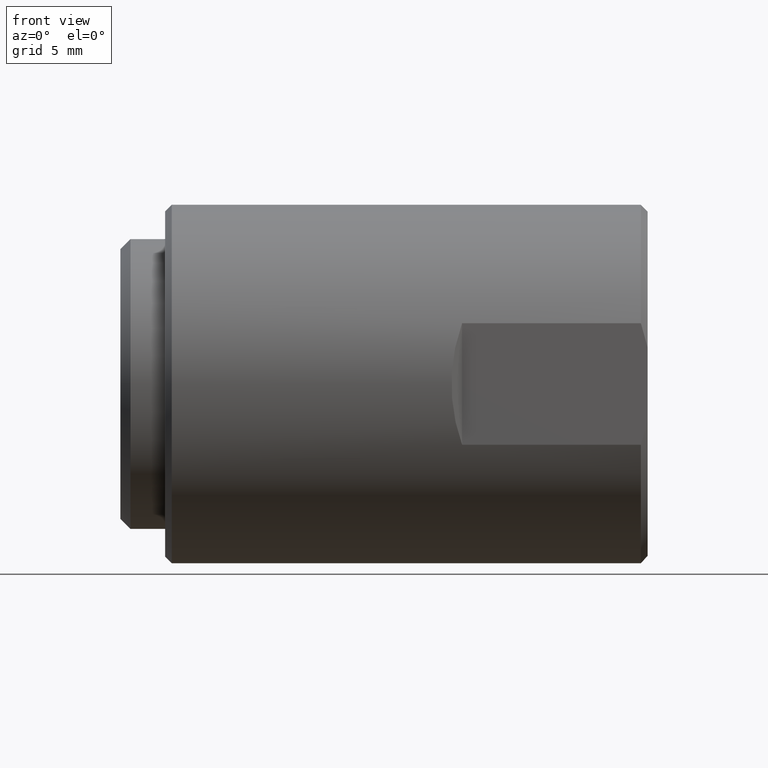
[diagram: clean part render]
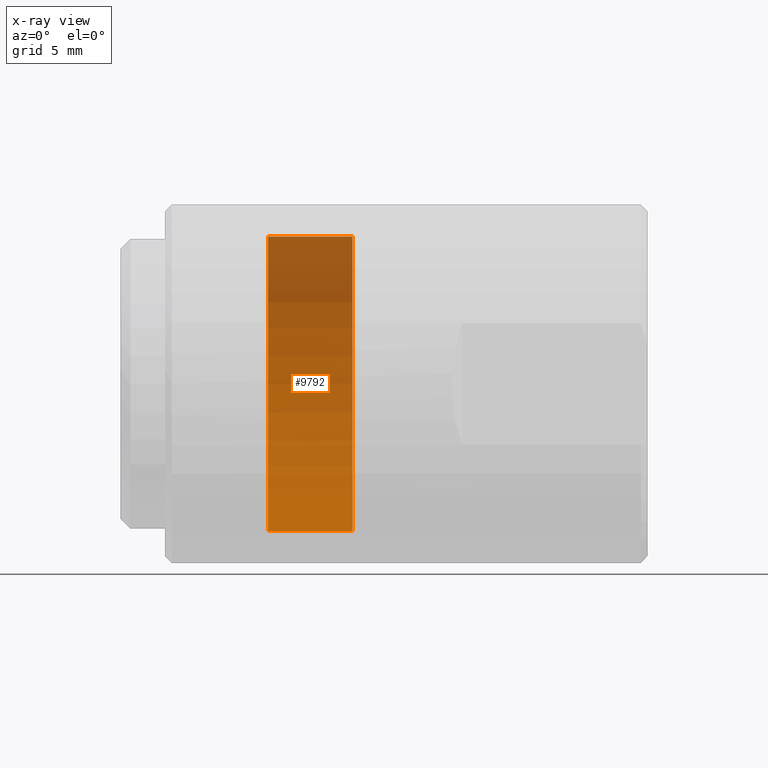
[diagram: x-ray — body ghosted, one internal face saturated and labeled with its STEP entity id]
A machine part, front view, then the same camera in x-ray: the body is ghosted and one INTERNAL B-rep face — a face not visible from any outside direction — is saturated and labeled: STEP entity #9792.
In plain terms, the highlighted cylindrical surface (partial cylindrical patch) has radius 11.0998 mm, axis along (-1, -0, -0).
Its self-contained STEP definition (entity closure, byte-faithful):
#40 = EDGE_CURVE ( 'NONE', #8440, #7607, #2316, .T. ) ;
#467 = CARTESIAN_POINT ( 'NONE',  ( 0.0000000000000000000, 5.351706512273933375E-17, -0.4369999999999999996 ) ) ;
#501 = CARTESIAN_POINT ( 'NONE',  ( 0.0000000000000000000, 0.0000000000000000000, 0.4369999999999999996 ) ) ;
#563 = DIRECTION ( 'NONE',  ( -1.000000000000000000, -0.0000000000000000000, -0.0000000000000000000 ) ) ;
#1259 = ORIENTED_EDGE ( 'NONE', *, *, #4608, .F. ) ;
#1531 = DIRECTION ( 'NONE',  ( 0.0000000000000000000, 0.0000000000000000000, 1.000000000000000000 ) ) ;
#1587 = DIRECTION ( 'NONE',  ( -1.000000000000000000, -0.0000000000000000000, -0.0000000000000000000 ) ) ;
#1851 = CIRCLE ( 'NONE', #3713, 0.4369999999999999996 ) ;
#2316 = CIRCLE ( 'NONE', #6579, 0.4369999999999999996 ) ;
#2349 = CARTESIAN_POINT ( 'NONE',  ( 0.0000000000000000000, 0.0000000000000000000, 0.0000000000000000000 ) ) ;
#3713 = AXIS2_PLACEMENT_3D ( 'NONE', #5087, #563, #4155 ) ;
#4054 = VECTOR ( 'NONE', #9257, 39.37007874015748143 ) ;
#4155 = DIRECTION ( 'NONE',  ( 0.0000000000000000000, 0.0000000000000000000, 1.000000000000000000 ) ) ;
#4364 = ORIENTED_EDGE ( 'NONE', *, *, #7556, .T. ) ;
#4473 = DIRECTION ( 'NONE',  ( 0.0000000000000000000, 0.0000000000000000000, 1.000000000000000000 ) ) ;
#4506 = CARTESIAN_POINT ( 'NONE',  ( 0.09400000000000001410, 5.351706512273933375E-17, -0.4369999999999999996 ) ) ;
#4608 = EDGE_CURVE ( 'NONE', #7607, #7519, #11065, .T. ) ;
#4907 = LINE ( 'NONE', #501, #4054 ) ;
#5087 = CARTESIAN_POINT ( 'NONE',  ( 0.09400000000000001410, 0.0000000000000000000, 0.0000000000000000000 ) ) ;
#5128 = CYLINDRICAL_SURFACE ( 'NONE', #6316, 0.4369999999999999996 ) ;
#5478 = CARTESIAN_POINT ( 'NONE',  ( 0.3440000000000000280, 0.0000000000000000000, 0.4369999999999999996 ) ) ;
#6314 = VERTEX_POINT ( 'NONE', #10587 ) ;
#6316 = AXIS2_PLACEMENT_3D ( 'NONE', #2349, #1587, #1531 ) ;
#6579 = AXIS2_PLACEMENT_3D ( 'NONE', #7024, #8777, #4473 ) ;
#6775 = ORIENTED_EDGE ( 'NONE', *, *, #40, .F. ) ;
#6790 = EDGE_LOOP ( 'NONE', ( #1259, #6775, #4364, #8857 ) ) ;
#7024 = CARTESIAN_POINT ( 'NONE',  ( 0.3440000000000000280, 0.0000000000000000000, 0.0000000000000000000 ) ) ;
#7519 = VERTEX_POINT ( 'NONE', #4506 ) ;
#7556 = EDGE_CURVE ( 'NONE', #8440, #6314, #4907, .T. ) ;
#7577 = CARTESIAN_POINT ( 'NONE',  ( 0.3440000000000000280, 5.351706512273933375E-17, -0.4369999999999999996 ) ) ;
#7607 = VERTEX_POINT ( 'NONE', #7577 ) ;
#7738 = FACE_OUTER_BOUND ( 'NONE', #6790, .T. ) ;
#8440 = VERTEX_POINT ( 'NONE', #5478 ) ;
#8777 = DIRECTION ( 'NONE',  ( -1.000000000000000000, -0.0000000000000000000, -0.0000000000000000000 ) ) ;
#8857 = ORIENTED_EDGE ( 'NONE', *, *, #9300, .T. ) ;
#9257 = DIRECTION ( 'NONE',  ( -1.000000000000000000, -0.0000000000000000000, -0.0000000000000000000 ) ) ;
#9300 = EDGE_CURVE ( 'NONE', #6314, #7519, #1851, .T. ) ;
#9792 = ADVANCED_FACE ( 'NONE', ( #7738 ), #5128, .F. ) ;
#9880 = VECTOR ( 'NONE', #11009, 39.37007874015748143 ) ;
#10587 = CARTESIAN_POINT ( 'NONE',  ( 0.09400000000000001410, 0.0000000000000000000, 0.4369999999999999996 ) ) ;
#11009 = DIRECTION ( 'NONE',  ( -1.000000000000000000, -0.0000000000000000000, -0.0000000000000000000 ) ) ;
#11065 = LINE ( 'NONE', #467, #9880 ) ;